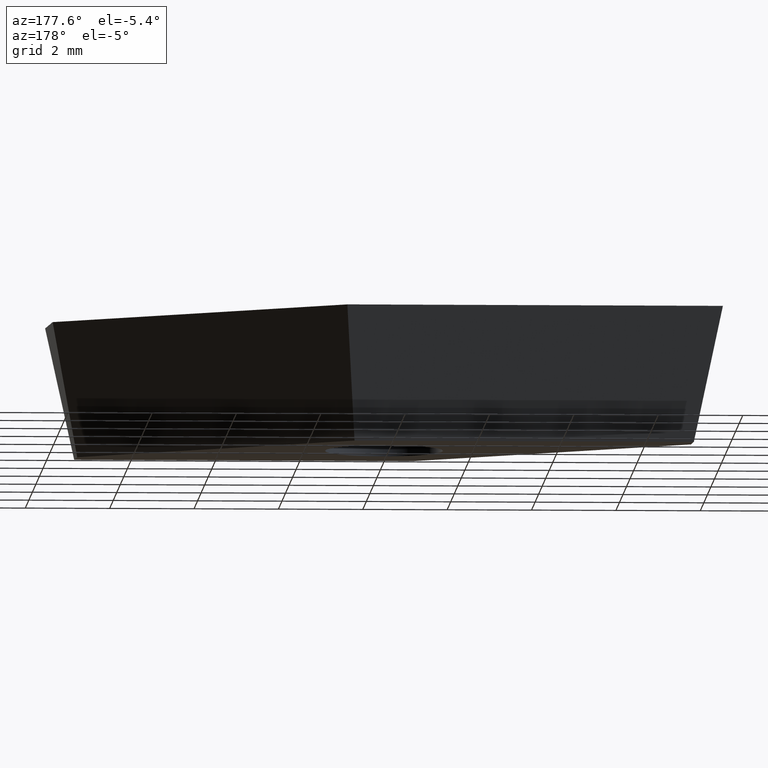
[diagram: clean part render]
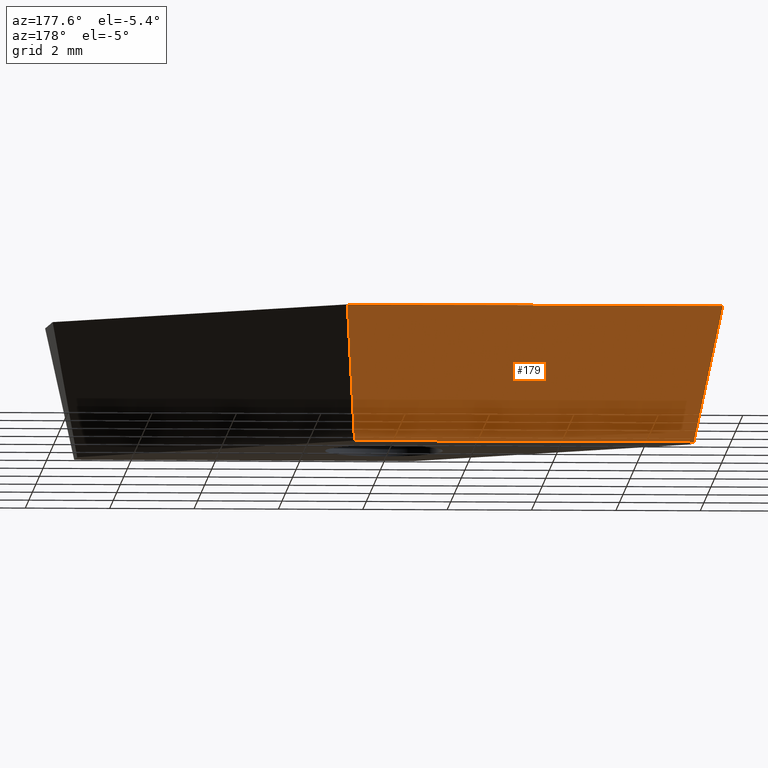
[diagram: same view with one face highlighted and labeled with its STEP entity id]
A machine part, auxiliary view. The second image highlights one B-rep face of the part: STEP entity #179.
In plain terms, the highlighted planar face has unit normal (-0, 0.9816, -0.1908).
Its self-contained STEP definition (entity closure, byte-faithful):
#32 = LINE ( 'NONE', #78, #48 ) ;
#36 = DIRECTION ( 'NONE',  ( -5.954649193080809200E-017, 0.9816271834476639800, -0.1908089953765452800 ) ) ;
#37 = VECTOR ( 'NONE', #79, 1000.000000000000100 ) ;
#45 = LINE ( 'NONE', #105, #37 ) ;
#48 = VECTOR ( 'NONE', #104, 1000.000000000000000 ) ;
#52 = VECTOR ( 'NONE', #325, 1000.000000000000100 ) ;
#53 = LINE ( 'NONE', #316, #52 ) ;
#61 = DIRECTION ( 'NONE',  ( -3.016797551621942100E-017, 0.1908089953765452800, 0.9816271834476639800 ) ) ;
#66 = FACE_OUTER_BOUND ( 'NONE', #212, .T. ) ;
#78 = CARTESIAN_POINT ( 'NONE',  ( 1.001073654690764100, 3.174999999999999800, 0.0000000000000000000 ) ) ;
#79 = DIRECTION ( 'NONE',  ( -0.2004640746510998100, 0.1869357738407769200, 0.9617011860410842300 ) ) ;
#86 = CARTESIAN_POINT ( 'NONE',  ( 1.001073654690764100, 2.556870616942053400, -3.180000000000000200 ) ) ;
#104 = DIRECTION ( 'NONE',  ( 1.000000000000000000, 6.066100545593014700E-017, -0.0000000000000000000 ) ) ;
#105 = CARTESIAN_POINT ( 'NONE',  ( -7.900000000000000400, 3.174999999999999400, 0.0000000000000000000 ) ) ;
#109 = EDGE_CURVE ( 'NONE', #255, #315, #138, .T. ) ;
#111 = CARTESIAN_POINT ( 'NONE',  ( 0.8061782088420823600, 2.556870616942053400, -3.180000000000000200 ) ) ;
#132 = PLANE ( 'NONE',  #245 ) ;
#133 = VECTOR ( 'NONE', #356, 1000.000000000000000 ) ;
#138 = LINE ( 'NONE', #86, #133 ) ;
#154 = CARTESIAN_POINT ( 'NONE',  ( 1.001073654690764100, 3.174999999999999800, 0.0000000000000000000 ) ) ;
#179 = ADVANCED_FACE ( 'NONE', ( #66 ), #132, .T. ) ;
#198 = ORIENTED_EDGE ( 'NONE', *, *, #312, .T. ) ;
#203 = EDGE_CURVE ( 'NONE', #315, #290, #53, .T. ) ;
#206 = ORIENTED_EDGE ( 'NONE', *, *, #203, .F. ) ;
#207 = ORIENTED_EDGE ( 'NONE', *, *, #109, .F. ) ;
#209 = ORIENTED_EDGE ( 'NONE', *, *, #305, .T. ) ;
#212 = EDGE_LOOP ( 'NONE', ( #198, #206, #207, #209 ) ) ;
#245 = AXIS2_PLACEMENT_3D ( 'NONE', #270, #36, #61 ) ;
#255 = VERTEX_POINT ( 'NONE', #329 ) ;
#260 = VERTEX_POINT ( 'NONE', #319 ) ;
#270 = CARTESIAN_POINT ( 'NONE',  ( 1.001073654690764100, 3.174999999999999800, 0.0000000000000000000 ) ) ;
#290 = VERTEX_POINT ( 'NONE', #154 ) ;
#305 = EDGE_CURVE ( 'NONE', #255, #260, #45, .T. ) ;
#312 = EDGE_CURVE ( 'NONE', #260, #290, #32, .T. ) ;
#315 = VERTEX_POINT ( 'NONE', #111 ) ;
#316 = CARTESIAN_POINT ( 'NONE',  ( 1.001073654690764100, 3.174999999999999800, 0.0000000000000000000 ) ) ;
#319 = CARTESIAN_POINT ( 'NONE',  ( -7.900000000000000400, 3.174999999999999400, 0.0000000000000000000 ) ) ;
#325 = DIRECTION ( 'NONE',  ( 0.06005326349153968000, 0.1904646183547176200, 0.9798555172570124800 ) ) ;
#329 = CARTESIAN_POINT ( 'NONE',  ( -7.237137390861797700, 2.556870616942053000, -3.180000000000000200 ) ) ;
#356 = DIRECTION ( 'NONE',  ( 1.000000000000000000, 6.066100545593014700E-017, 0.0000000000000000000 ) ) ;